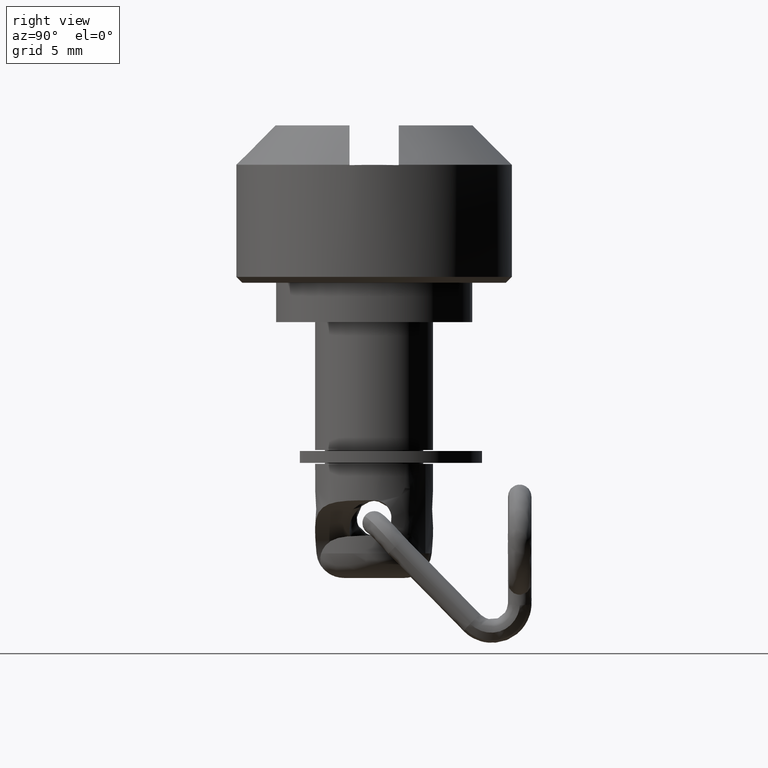
[diagram: clean part render]
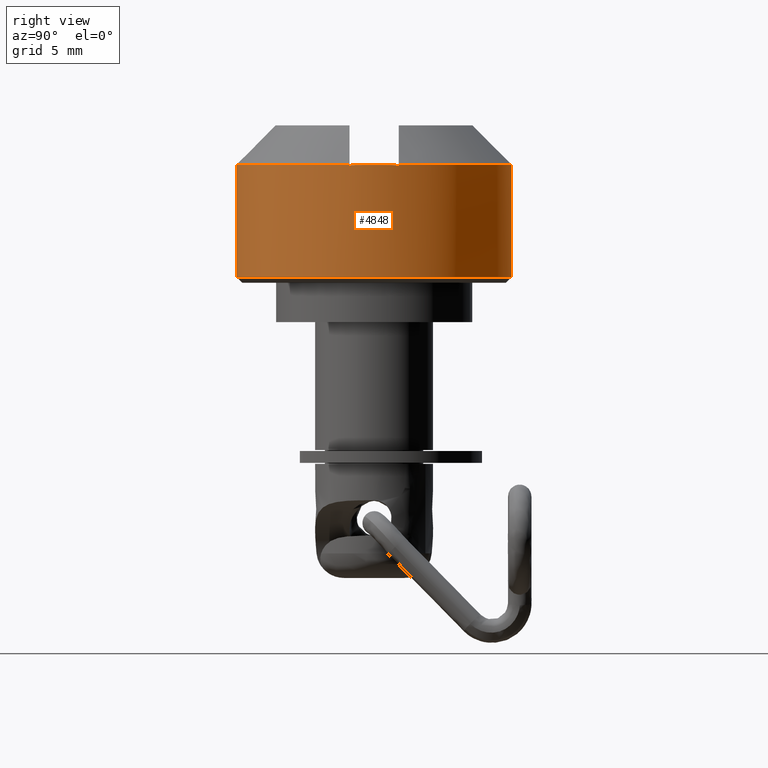
[diagram: same view with one face highlighted and labeled with its STEP entity id]
A machine part, right view. The second image highlights one B-rep face of the part: STEP entity #4848.
In plain terms, the highlighted face is a freeform B-spline surface patch.
Its self-contained STEP definition (entity closure, byte-faithful):
#4557=CARTESIAN_POINT('',(-2.564607747834702,6.513277753920568,12.502433999999900));
#4558=VERTEX_POINT('',#4557);
#4559=CARTESIAN_POINT('',(-0.549213670095037,6.978421336131901,12.502433999999919));
#4560=VERTEX_POINT('',#4559);
#4561=CARTESIAN_POINT('',(-2.564607747834703,6.513277753920568,12.502433999999901));
#4562=CARTESIAN_POINT('',(-1.591652353239558,6.896379632508370,12.502433999999898));
#4563=CARTESIAN_POINT('',(-0.549213670095037,6.978421336131901,12.502433999999923));
#4571=(BOUNDED_CURVE()B_SPLINE_CURVE(2,(#4561,#4562,#4563),.UNSPECIFIED.,.F.,.U.)B_SPLINE_CURVE_WITH_KNOTS((3,3),(0.187791415765930,0.236331300632761),.UNSPECIFIED.)CURVE()GEOMETRIC_REPRESENTATION_ITEM()RATIONAL_B_SPLINE_CURVE((0.890507253701000,0.919073837823266,0.969723356171803))REPRESENTATION_ITEM(''));
#4572=EDGE_CURVE('',#4558,#4560,#4571,.T.);
#4671=CARTESIAN_POINT('',(7.0,0.0,12.502433999999900));
#4672=VERTEX_POINT('',#4671);
#4673=CARTESIAN_POINT('',(-0.549213670095037,6.978421336131901,12.502433999999914));
#4674=CARTESIAN_POINT('',(-0.275030749053807,7.000000000000001,12.502433999999907));
#4675=CARTESIAN_POINT('',(0.0,7.0,12.502433999999900));
#4676=CARTESIAN_POINT('',(6.999999999999999,6.999999999999999,12.502433999999903));
#4677=CARTESIAN_POINT('',(7.0,0.0,12.502433999999900));
#4685=(BOUNDED_CURVE()B_SPLINE_CURVE(2,(#4673,#4674,#4675,#4676,#4677),.UNSPECIFIED.,.F.,.U.)B_SPLINE_CURVE_WITH_KNOTS((3,2,3),(0.236331300632761,0.250000000000000,0.500000000000000),.UNSPECIFIED.)CURVE()GEOMETRIC_REPRESENTATION_ITEM()RATIONAL_B_SPLINE_CURVE((0.969723356171803,0.983986122581344,1.0,0.707106781186547,1.0))REPRESENTATION_ITEM(''));
#4686=EDGE_CURVE('',#4560,#4672,#4685,.T.);
#4688=CARTESIAN_POINT('',(2.187905817082596,-6.649290799444414,12.502433999999900));
#4689=VERTEX_POINT('',#4688);
#4690=CARTESIAN_POINT('',(7.0,0.0,12.502433999999900));
#4691=CARTESIAN_POINT('',(6.999999999999999,-5.065902556414235,12.502433999999903));
#4692=CARTESIAN_POINT('',(2.187905817082596,-6.649290799444414,12.502433999999900));
#4700=(BOUNDED_CURVE()B_SPLINE_CURVE(2,(#4690,#4691,#4692),.UNSPECIFIED.,.F.,.U.)B_SPLINE_CURVE_WITH_KNOTS((3,3),(0.500000000000000,0.696855909610349),.UNSPECIFIED.)CURVE()GEOMETRIC_REPRESENTATION_ITEM()RATIONAL_B_SPLINE_CURVE((1.0,0.769368955967099,0.901946583594048))REPRESENTATION_ITEM(''));
#4701=EDGE_CURVE('',#4672,#4689,#4700,.T.);
#4751=CARTESIAN_POINT('',(-2.564612813045228,6.513275759490323,18.344930925000011));
#4752=CARTESIAN_POINT('',(-2.378205659101143,6.586673876367489,18.344930925000011));
#4753=CARTESIAN_POINT('',(-2.187905813112196,6.649290800750847,18.344930925000011));
#4754=CARTESIAN_POINT('',(4.461384987638652,8.837196613863043,18.344930925000007));
#4755=CARTESIAN_POINT('',(6.649290800750847,2.187905813112196,18.344930925000011));
#4756=CARTESIAN_POINT('',(8.837196613863043,-4.461384987638652,18.344930925000007));
#4757=CARTESIAN_POINT('',(2.187905813112196,-6.649290800750847,18.344930925000011));
#4758=CARTESIAN_POINT('',(-2.564612813045228,6.513275759490323,12.356371576874899));
#4759=CARTESIAN_POINT('',(-2.378205659101143,6.586673876367489,12.356371576874899));
#4760=CARTESIAN_POINT('',(-2.187905813112196,6.649290800750847,12.356371576874899));
#4761=CARTESIAN_POINT('',(4.461384987638652,8.837196613863043,12.356371576874896));
#4762=CARTESIAN_POINT('',(6.649290800750847,2.187905813112196,12.356371576874899));
#4763=CARTESIAN_POINT('',(8.837196613863043,-4.461384987638652,12.356371576874896));
#4764=CARTESIAN_POINT('',(2.187905813112196,-6.649290800750847,12.356371576874899));
#4772=(BOUNDED_SURFACE()B_SPLINE_SURFACE(2,1,((#4751,#4758),(#4752,#4759),(#4753,#4760),(#4754,#4761),(#4755,#4762),(#4756,#4763),(#4757,#4764)),.UNSPECIFIED.,.F.,.F.,.U.)B_SPLINE_SURFACE_WITH_KNOTS((3,2,2,3),(2,2),(0.0,0.463919189857867,12.061898936304530,23.659878682751181),(0.0,5.988559348125114),.UNSPECIFIED.)GEOMETRIC_REPRESENTATION_ITEM()RATIONAL_B_SPLINE_SURFACE(((0.977505800795127,0.977505800795127),(0.988284271247462,0.988284271247462),(1.0,1.0),(0.707106781186548,0.707106781186548),(1.0,1.0),(0.707106781186548,0.707106781186548),(1.0,1.0)))REPRESENTATION_ITEM('')SURFACE());
#4773=ORIENTED_EDGE('',*,*,#4572,.F.);
#4774=CARTESIAN_POINT('',(-2.564606604443998,6.513278204130214,18.202431000000001));
#4775=VERTEX_POINT('',#4774);
#4776=CARTESIAN_POINT('',(-2.564606604443998,6.513278204130214,18.202431000000001));
#4777=CARTESIAN_POINT('',(-2.564607747834702,6.513277753920568,12.502433999999900));
#4778=QUASI_UNIFORM_CURVE('',1,(#4776,#4777),.UNSPECIFIED.,.F.,.U.);
#4779=EDGE_CURVE('',#4775,#4558,#4778,.T.);
#4780=ORIENTED_EDGE('',*,*,#4779,.F.);
#4781=CARTESIAN_POINT('',(6.044596208831250,3.530277138155440,18.202431000000001));
#4782=VERTEX_POINT('',#4781);
#4783=CARTESIAN_POINT('',(-2.564606604443998,6.513278204130214,18.202431000000008));
#4784=CARTESIAN_POINT('',(-2.479795013416292,6.546672811221830,18.202430999999997));
#4785=CARTESIAN_POINT('',(-2.394142640570741,6.577847749575917,18.202431000000001));
#4786=CARTESIAN_POINT('',(3.097354542766490,8.576590813832675,18.202430999999994));
#4787=CARTESIAN_POINT('',(6.044596208831243,3.530277138155440,18.202431000000001));
#4795=(BOUNDED_CURVE()B_SPLINE_CURVE(2,(#4783,#4784,#4785,#4786,#4787),.UNSPECIFIED.,.F.,.U.)B_SPLINE_CURVE_WITH_KNOTS((3,2,3),(0.489888624850572,0.500000000000000,1.0),.UNSPECIFIED.)CURVE()GEOMETRIC_REPRESENTATION_ITEM()RATIONAL_B_SPLINE_CURVE((0.990792510615218,0.995301233322375,1.0,0.767649473578738,1.0))REPRESENTATION_ITEM(''));
#4796=EDGE_CURVE('',#4775,#4782,#4795,.T.);
#4797=ORIENTED_EDGE('',*,*,#4796,.T.);
#4798=CARTESIAN_POINT('',(6.044596208831281,3.530277138155335,18.179077626735999));
#4799=VERTEX_POINT('',#4798);
#4800=CARTESIAN_POINT('',(6.044596208831281,3.530277138155335,18.179077626735999));
#4801=CARTESIAN_POINT('',(6.044596208831250,3.530277138155440,18.202431000000001));
#4802=QUASI_UNIFORM_CURVE('',1,(#4800,#4801),.UNSPECIFIED.,.F.,.U.);
#4803=EDGE_CURVE('',#4799,#4782,#4802,.T.);
#4804=ORIENTED_EDGE('',*,*,#4803,.F.);
#4805=CARTESIAN_POINT('',(6.899647151892211,1.181045799021214,18.179077626735999));
#4806=VERTEX_POINT('',#4805);
#4807=CARTESIAN_POINT('',(6.044596208831281,3.530277138155335,18.179077626735999));
#4808=CARTESIAN_POINT('',(6.258164445502683,3.164602234120698,18.189594547276091));
#4809=CARTESIAN_POINT('',(6.612514072628913,2.406760160065414,18.200116494653749));
#4810=CARTESIAN_POINT('',(6.828198407543310,1.598448008031095,18.189594547276059));
#4811=CARTESIAN_POINT('',(6.899647151892211,1.181045799021214,18.179077626735999));
#4812=B_SPLINE_CURVE_WITH_KNOTS('',3,(#4807,#4808,#4809,#4810,#4811),.UNSPECIFIED.,.F.,.U.,(4,1,4),(0.0,0.500000000000000,1.0),.UNSPECIFIED.);
#4813=EDGE_CURVE('',#4799,#4806,#4812,.T.);
#4814=ORIENTED_EDGE('',*,*,#4813,.T.);
#4815=CARTESIAN_POINT('',(6.899647151892220,1.181045799021180,18.202431000000001));
#4816=VERTEX_POINT('',#4815);
#4817=CARTESIAN_POINT('',(6.899647151892211,1.181045799021214,18.179077626735999));
#4818=CARTESIAN_POINT('',(6.899647151892220,1.181045799021180,18.202431000000001));
#4819=QUASI_UNIFORM_CURVE('',1,(#4817,#4818),.UNSPECIFIED.,.F.,.U.);
#4820=EDGE_CURVE('',#4806,#4816,#4819,.T.);
#4821=ORIENTED_EDGE('',*,*,#4820,.T.);
#4822=CARTESIAN_POINT('',(2.187912464805632,-6.649288612047088,18.202431000000001));
#4823=VERTEX_POINT('',#4822);
#4824=CARTESIAN_POINT('',(6.899647151892220,1.181045799021181,18.202431000000001));
#4825=CARTESIAN_POINT('',(7.885639823907959,-4.579104685319165,18.202431000000008));
#4826=CARTESIAN_POINT('',(2.394142640570740,-6.577847749575917,18.202431000000001));
#4827=CARTESIAN_POINT('',(2.291584485845770,-6.615175894086581,18.202431000000001));
#4828=CARTESIAN_POINT('',(2.187912464805632,-6.649288612047088,18.202431000000004));
#4836=(BOUNDED_CURVE()B_SPLINE_CURVE(2,(#4824,#4825,#4826,#4827,#4828),.UNSPECIFIED.,.F.,.U.)B_SPLINE_CURVE_WITH_KNOTS((3,2,3),(0.0,0.500000000000000,0.512095906841295),.UNSPECIFIED.)CURVE()GEOMETRIC_REPRESENTATION_ITEM()RATIONAL_B_SPLINE_CURVE((1.0,0.767649473578739,1.0,0.994379019355765,0.989030002144448))REPRESENTATION_ITEM(''));
#4837=EDGE_CURVE('',#4816,#4823,#4836,.T.);
#4838=ORIENTED_EDGE('',*,*,#4837,.T.);
#4839=CARTESIAN_POINT('',(2.187912464805632,-6.649288612047088,18.202431000000001));
#4840=CARTESIAN_POINT('',(2.187905817082596,-6.649290799444414,12.502433999999900));
#4841=QUASI_UNIFORM_CURVE('',1,(#4839,#4840),.UNSPECIFIED.,.F.,.U.);
#4842=EDGE_CURVE('',#4823,#4689,#4841,.T.);
#4843=ORIENTED_EDGE('',*,*,#4842,.T.);
#4844=ORIENTED_EDGE('',*,*,#4701,.F.);
#4845=ORIENTED_EDGE('',*,*,#4686,.F.);
#4846=EDGE_LOOP('',(#4773,#4780,#4797,#4804,#4814,#4821,#4838,#4843,#4844,#4845));
#4847=FACE_OUTER_BOUND('',#4846,.T.);
#4848=ADVANCED_FACE('',(#4847),#4772,.T.);